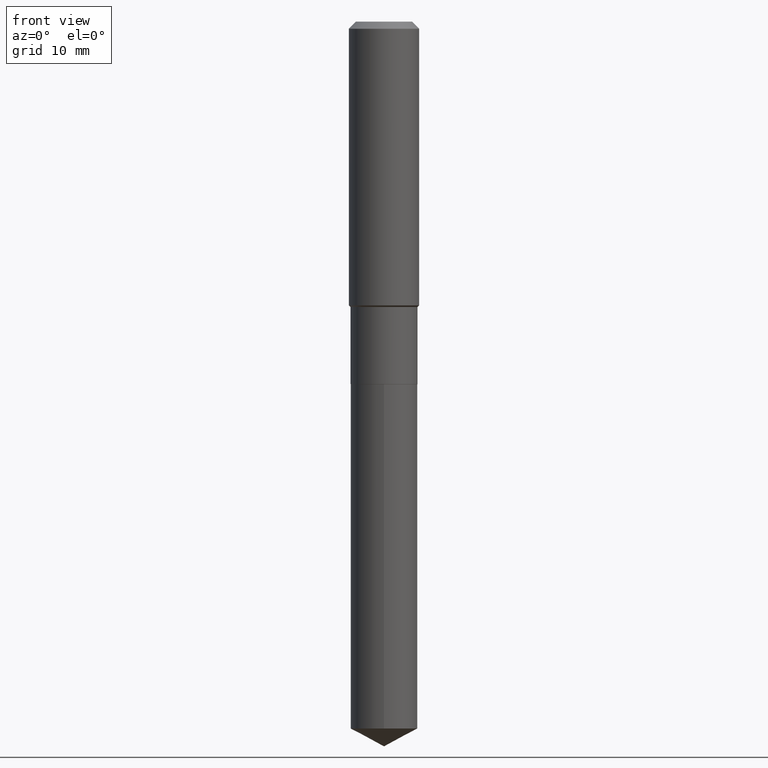
[diagram: clean part render]
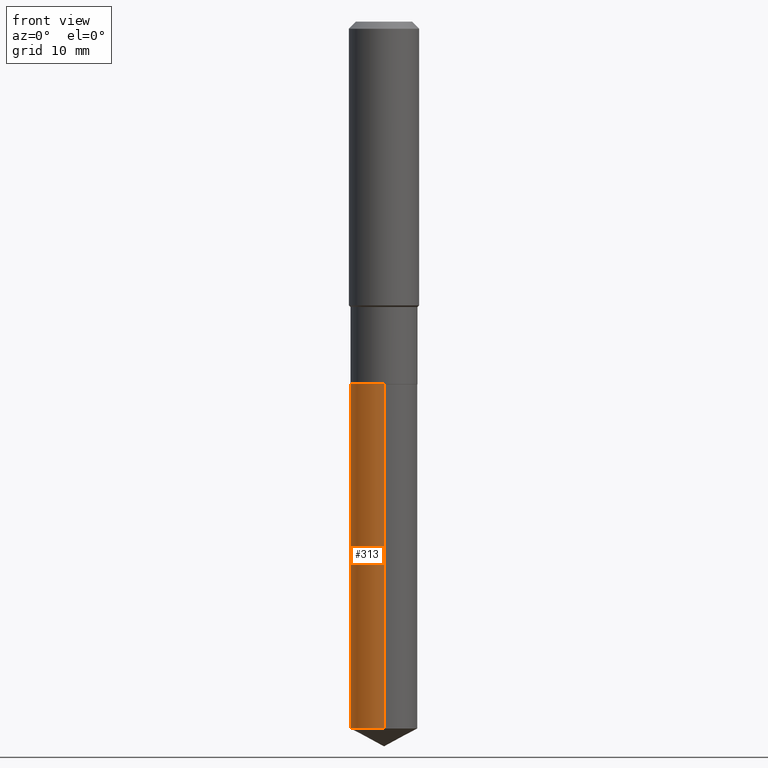
[diagram: same view with one face highlighted and labeled with its STEP entity id]
A machine part, front view. The second image highlights one B-rep face of the part: STEP entity #313.
In plain terms, the highlighted cylindrical surface (edge-blend (fillet) strip) has radius 4.7625 mm, axis along (-0, 0, 1).
Its self-contained STEP definition (entity closure, byte-faithful):
#2 = CIRCLE ( 'NONE', #223, 0.1875000000000000278 ) ;
#8 = VECTOR ( 'NONE', #127, 39.37007874015748143 ) ;
#12 = CYLINDRICAL_SURFACE ( 'NONE', #423, 0.1875000000000000278 ) ;
#16 = CARTESIAN_POINT ( 'NONE',  ( 4.959410738943456063E-29, -7.080724155173897732E-15, -2.027999999999999581 ) ) ;
#40 = DIRECTION ( 'NONE',  ( -6.982962677686265922E-15, -1.000000000000000000, 2.913971193241880372E-15 ) ) ;
#51 = CARTESIAN_POINT ( 'NONE',  ( -1.309305502066077978E-15, -0.1875000000000137668, -3.955304481563473029 ) ) ;
#60 = CARTESIAN_POINT ( 'NONE',  ( 9.672567862117980810E-29, -1.380988018799741767E-14, -3.955304481563473473 ) ) ;
#70 = EDGE_CURVE ( 'NONE', #81, #385, #199, .T. ) ;
#81 = VERTEX_POINT ( 'NONE', #354 ) ;
#89 = EDGE_LOOP ( 'NONE', ( #472, #420, #371, #197 ) ) ;
#94 = DIRECTION ( 'NONE',  ( -2.445465762291541811E-29, 3.491485697872021130E-15, 1.000000000000000000 ) ) ;
#122 = VERTEX_POINT ( 'NONE', #170 ) ;
#127 = DIRECTION ( 'NONE',  ( -2.445465762291541811E-29, 3.491485697872021130E-15, 1.000000000000000000 ) ) ;
#164 = DIRECTION ( 'NONE',  ( -2.445465762291541811E-29, 3.491485697872021130E-15, 1.000000000000000000 ) ) ;
#166 = LINE ( 'NONE', #250, #8 ) ;
#170 = CARTESIAN_POINT ( 'NONE',  ( -1.309305502066125507E-15, -0.1875000000000070777, -2.027999999999999137 ) ) ;
#185 = CARTESIAN_POINT ( 'NONE',  ( -1.309305502066125507E-15, -0.1875000000000070777, -2.027999999999999137 ) ) ;
#197 = ORIENTED_EDGE ( 'NONE', *, *, #288, .F. ) ;
#199 = CIRCLE ( 'NONE', #278, 0.1875000000000000278 ) ;
#214 = EDGE_CURVE ( 'NONE', #385, #122, #296, .T. ) ;
#223 = AXIS2_PLACEMENT_3D ( 'NONE', #16, #164, #455 ) ;
#229 = VECTOR ( 'NONE', #332, 39.37007874015748143 ) ;
#231 = CARTESIAN_POINT ( 'NONE',  ( 4.959410738943456063E-29, -7.080724155173897732E-15, -2.027999999999999581 ) ) ;
#250 = CARTESIAN_POINT ( 'NONE',  ( 1.332267629550237152E-15, 0.1874999999999929501, -2.028000000000000025 ) ) ;
#276 = DIRECTION ( 'NONE',  ( -6.982962677686265922E-15, -1.000000000000000000, 2.913971193241880372E-15 ) ) ;
#278 = AXIS2_PLACEMENT_3D ( 'NONE', #60, #94, #276 ) ;
#288 = EDGE_CURVE ( 'NONE', #451, #122, #2, .T. ) ;
#296 = LINE ( 'NONE', #185, #229 ) ;
#313 = ADVANCED_FACE ( 'NONE', ( #345 ), #12, .T. ) ;
#314 = CARTESIAN_POINT ( 'NONE',  ( 1.332267629550284681E-15, 0.1874999999999929501, -2.028000000000000025 ) ) ;
#332 = DIRECTION ( 'NONE',  ( -2.445465762291541811E-29, 3.491485697872021130E-15, 1.000000000000000000 ) ) ;
#345 = FACE_OUTER_BOUND ( 'NONE', #89, .T. ) ;
#354 = CARTESIAN_POINT ( 'NONE',  ( 1.332267629550284287E-15, 0.1874999999999861777, -3.955304481563474361 ) ) ;
#361 = EDGE_CURVE ( 'NONE', #81, #451, #166, .T. ) ;
#371 = ORIENTED_EDGE ( 'NONE', *, *, #214, .T. ) ;
#376 = DIRECTION ( 'NONE',  ( -2.445465762291541811E-29, 3.491485697872021130E-15, 1.000000000000000000 ) ) ;
#385 = VERTEX_POINT ( 'NONE', #51 ) ;
#420 = ORIENTED_EDGE ( 'NONE', *, *, #70, .T. ) ;
#423 = AXIS2_PLACEMENT_3D ( 'NONE', #231, #376, #40 ) ;
#451 = VERTEX_POINT ( 'NONE', #314 ) ;
#455 = DIRECTION ( 'NONE',  ( -6.982962677686265922E-15, -1.000000000000000000, 2.913971193241880372E-15 ) ) ;
#472 = ORIENTED_EDGE ( 'NONE', *, *, #361, .F. ) ;